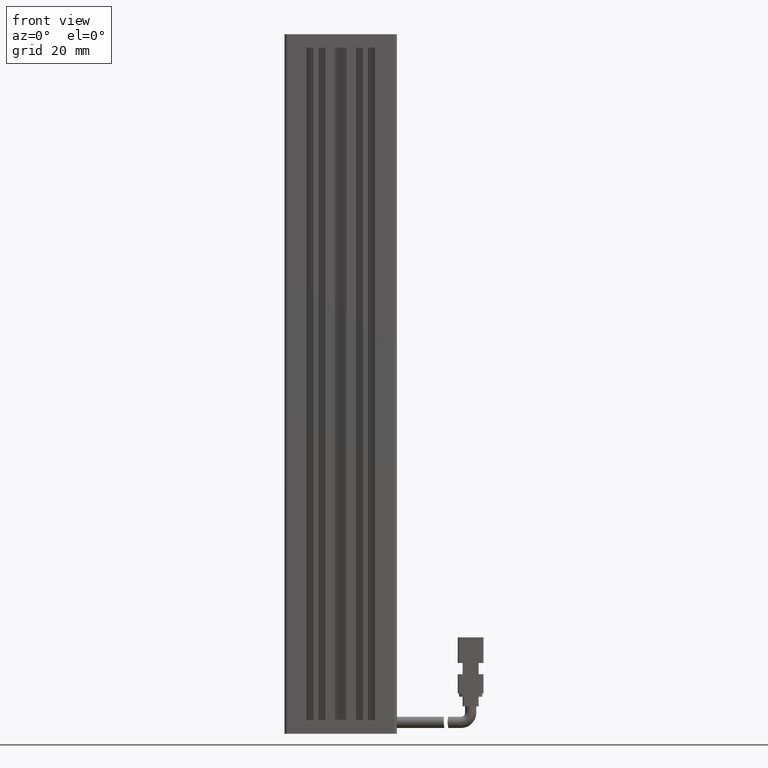
[diagram: clean part render]
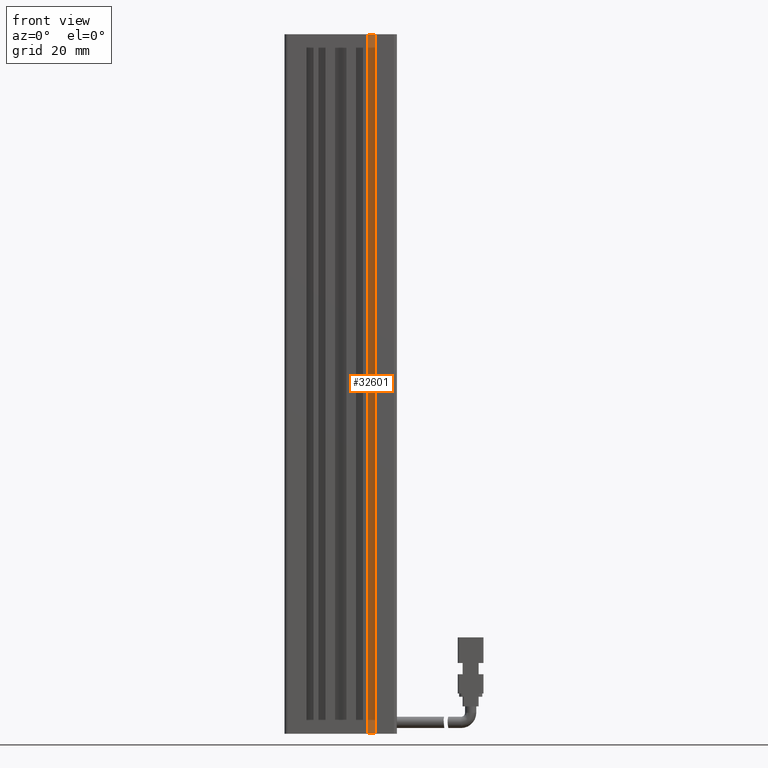
[diagram: same view with one face highlighted and labeled with its STEP entity id]
A machine part, front view. The second image highlights one B-rep face of the part: STEP entity #32601.
In plain terms, the highlighted planar face has unit normal (0, -1, 0).
Its self-contained STEP definition (entity closure, byte-faithful):
#1851 = VECTOR ( 'NONE', #35159, 1000.000000000000000 ) ;
#3492 = CARTESIAN_POINT ( 'NONE',  ( 40.92537974683542500, 16.49073232304836600, -224.0000000000000000 ) ) ;
#4512 = AXIS2_PLACEMENT_3D ( 'NONE', #19538, #53905, #61226 ) ;
#9634 = CARTESIAN_POINT ( 'NONE',  ( 49.42537974683541800, 16.49073232304836600, -6.000000000000005300 ) ) ;
#10134 = VERTEX_POINT ( 'NONE', #22003 ) ;
#10613 = LINE ( 'NONE', #76739, #1851 ) ;
#15418 = LINE ( 'NONE', #3492, #23021 ) ;
#15729 = DIRECTION ( 'NONE',  ( 0.0000000000000000000, -0.0000000000000000000, -1.000000000000000000 ) ) ;
#19538 = CARTESIAN_POINT ( 'NONE',  ( 40.92537974683542500, 16.49073232304836600, -6.000000000000005300 ) ) ;
#22003 = CARTESIAN_POINT ( 'NONE',  ( 49.42537974683541800, 16.49073232304836600, -6.000000000000005300 ) ) ;
#22146 = EDGE_CURVE ( 'NONE', #10134, #56939, #77972, .T. ) ;
#23021 = VECTOR ( 'NONE', #66522, 1000.000000000000000 ) ;
#26720 = FACE_OUTER_BOUND ( 'NONE', #33220, .T. ) ;
#32601 = ADVANCED_FACE ( 'NONE', ( #26720 ), #87810, .T. ) ;
#33220 = EDGE_LOOP ( 'NONE', ( #44087, #83973, #45551, #50562 ) ) ;
#34095 = CARTESIAN_POINT ( 'NONE',  ( 51.62537974683542100, 16.49073232304836600, -6.000000000000005300 ) ) ;
#35159 = DIRECTION ( 'NONE',  ( -0.0000000000000000000, -0.0000000000000000000, -1.000000000000000000 ) ) ;
#36295 = DIRECTION ( 'NONE',  ( 1.000000000000000000, 0.0000000000000000000, 0.0000000000000000000 ) ) ;
#37494 = CARTESIAN_POINT ( 'NONE',  ( 40.92537974683542500, 16.49073232304836600, -6.000000000000005300 ) ) ;
#40956 = LINE ( 'NONE', #37494, #89145 ) ;
#44087 = ORIENTED_EDGE ( 'NONE', *, *, #48496, .F. ) ;
#45551 = ORIENTED_EDGE ( 'NONE', *, *, #84939, .T. ) ;
#47897 = EDGE_CURVE ( 'NONE', #89372, #66231, #10613, .T. ) ;
#48496 = EDGE_CURVE ( 'NONE', #10134, #89372, #40956, .T. ) ;
#50562 = ORIENTED_EDGE ( 'NONE', *, *, #47897, .F. ) ;
#52337 = CARTESIAN_POINT ( 'NONE',  ( 49.42537974683541800, 16.49073232304836600, -224.0000000000000000 ) ) ;
#53905 = DIRECTION ( 'NONE',  ( 0.0000000000000000000, -1.000000000000000000, 0.0000000000000000000 ) ) ;
#56939 = VERTEX_POINT ( 'NONE', #52337 ) ;
#61226 = DIRECTION ( 'NONE',  ( 0.0000000000000000000, -0.0000000000000000000, -1.000000000000000000 ) ) ;
#66231 = VERTEX_POINT ( 'NONE', #75038 ) ;
#66522 = DIRECTION ( 'NONE',  ( 1.000000000000000000, 0.0000000000000000000, 0.0000000000000000000 ) ) ;
#72422 = VECTOR ( 'NONE', #15729, 1000.000000000000000 ) ;
#75038 = CARTESIAN_POINT ( 'NONE',  ( 51.62537974683542100, 16.49073232304836600, -224.0000000000000000 ) ) ;
#76739 = CARTESIAN_POINT ( 'NONE',  ( 51.62537974683541400, 16.49073232304836600, -6.000000000000005300 ) ) ;
#77972 = LINE ( 'NONE', #9634, #72422 ) ;
#83973 = ORIENTED_EDGE ( 'NONE', *, *, #22146, .T. ) ;
#84939 = EDGE_CURVE ( 'NONE', #56939, #66231, #15418, .T. ) ;
#87810 = PLANE ( 'NONE',  #4512 ) ;
#89145 = VECTOR ( 'NONE', #36295, 1000.000000000000000 ) ;
#89372 = VERTEX_POINT ( 'NONE', #34095 ) ;